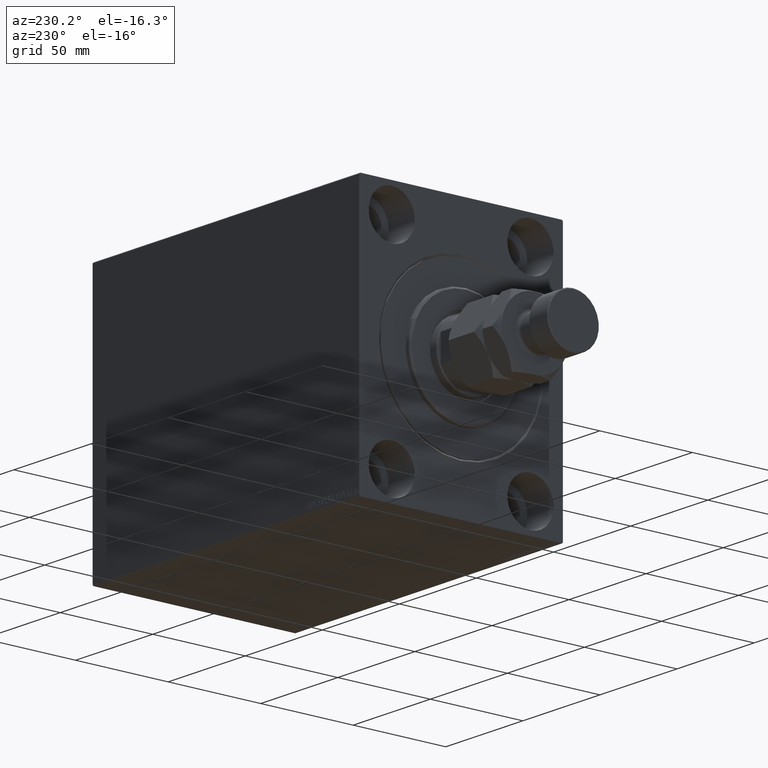
[diagram: clean part render]
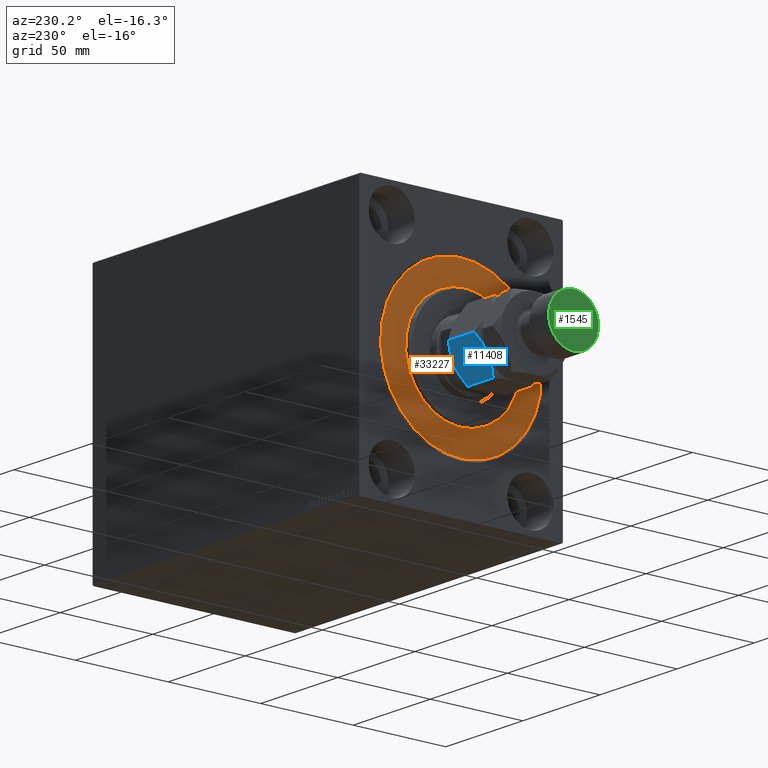
[diagram: same view with three faces highlighted in distinct colors, each labeled with its STEP entity id]
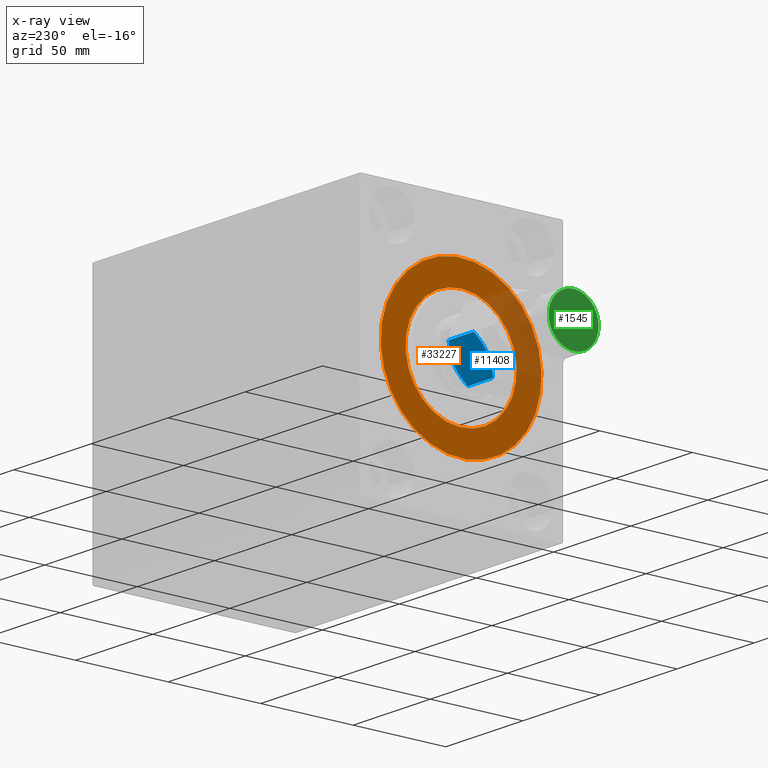
[diagram: x-ray of the same camera — body ghosted, the three highlighted faces saturated]
A machine part, auxiliary view with three faces highlighted in distinct colors.
The next image is the same camera in x-ray (body ghosted, the three faces saturated) — at least one of them is partly hidden behind the body in this view.
Their STEP definitions:

[orange] entity #33227 — the highlighted planar face has unit normal (1, 0, -0).
#2454 = DIRECTION ( 'NONE',  ( 1.000000000000000000, -0.000000000000000000, 0.000000000000000000 ) ) ;
#4087 = AXIS2_PLACEMENT_3D ( 'NONE', #15046, #15270, #40595 ) ;
#5914 = DIRECTION ( 'NONE',  ( 0.000000000000000000, 0.000000000000000000, -1.000000000000000000 ) ) ;
#5976 = EDGE_LOOP ( 'NONE', ( #21158, #35433 ) ) ;
#6609 = VERTEX_POINT ( 'NONE', #33498 ) ;
#6861 = CARTESIAN_POINT ( 'NONE',  ( 0.000000000000000000, 5.327213576290986044E-15, 43.50000000000000000 ) ) ;
#7173 = CARTESIAN_POINT ( 'NONE',  ( 0.000000000000000000, 0.000000000000000000, -43.50000000000000000 ) ) ;
#8223 = CIRCLE ( 'NONE', #30983, 30.00000000000000000 ) ;
#13819 = DIRECTION ( 'NONE',  ( 0.000000000000000000, 0.000000000000000000, 1.000000000000000000 ) ) ;
#13959 = VERTEX_POINT ( 'NONE', #6861 ) ;
#15046 = CARTESIAN_POINT ( 'NONE',  ( 0.000000000000000000, 0.000000000000000000, 0.000000000000000000 ) ) ;
#15270 = DIRECTION ( 'NONE',  ( -1.000000000000000000, 0.000000000000000000, 0.000000000000000000 ) ) ;
#15919 = CIRCLE ( 'NONE', #30604, 30.00000000000000000 ) ;
#15949 = PLANE ( 'NONE',  #4087 ) ;
#16508 = DIRECTION ( 'NONE',  ( 1.000000000000000000, -0.000000000000000000, 0.000000000000000000 ) ) ;
#16878 = EDGE_CURVE ( 'NONE', #6609, #43461, #8223, .T. ) ;
#16954 = CARTESIAN_POINT ( 'NONE',  ( 0.000000000000000000, 0.000000000000000000, 0.000000000000000000 ) ) ;
#17330 = AXIS2_PLACEMENT_3D ( 'NONE', #38143, #17876, #20646 ) ;
#17876 = DIRECTION ( 'NONE',  ( -1.000000000000000000, 0.000000000000000000, 0.000000000000000000 ) ) ;
#18874 = AXIS2_PLACEMENT_3D ( 'NONE', #31303, #31079, #13819 ) ;
#19533 = CIRCLE ( 'NONE', #17330, 43.50000000000000000 ) ;
#20646 = DIRECTION ( 'NONE',  ( 0.000000000000000000, 0.000000000000000000, 1.000000000000000000 ) ) ;
#21158 = ORIENTED_EDGE ( 'NONE', *, *, #40091, .F. ) ;
#29763 = FACE_OUTER_BOUND ( 'NONE', #43161, .T. ) ;
#30604 = AXIS2_PLACEMENT_3D ( 'NONE', #16954, #16508, #5914 ) ;
#30983 = AXIS2_PLACEMENT_3D ( 'NONE', #41832, #2454, #45504 ) ;
#31079 = DIRECTION ( 'NONE',  ( -1.000000000000000000, 0.000000000000000000, 0.000000000000000000 ) ) ;
#31303 = CARTESIAN_POINT ( 'NONE',  ( 0.000000000000000000, 0.000000000000000000, 0.000000000000000000 ) ) ;
#32222 = VERTEX_POINT ( 'NONE', #7173 ) ;
#33227 = ADVANCED_FACE ( 'NONE', ( #36889, #29763 ), #15949, .F. ) ;
#33498 = CARTESIAN_POINT ( 'NONE',  ( 0.000000000000000000, 3.673940397442059178E-15, -30.00000000000000000 ) ) ;
#34113 = EDGE_CURVE ( 'NONE', #13959, #32222, #19533, .T. ) ;
#35433 = ORIENTED_EDGE ( 'NONE', *, *, #16878, .F. ) ;
#36889 = FACE_BOUND ( 'NONE', #5976, .T. ) ;
#37138 = CARTESIAN_POINT ( 'NONE',  ( 0.000000000000000000, 0.000000000000000000, 30.00000000000000000 ) ) ;
#38143 = CARTESIAN_POINT ( 'NONE',  ( 0.000000000000000000, 0.000000000000000000, 0.000000000000000000 ) ) ;
#38538 = ORIENTED_EDGE ( 'NONE', *, *, #34113, .F. ) ;
#38724 = CIRCLE ( 'NONE', #18874, 43.50000000000000000 ) ;
#40091 = EDGE_CURVE ( 'NONE', #43461, #6609, #15919, .T. ) ;
#40595 = DIRECTION ( 'NONE',  ( 0.000000000000000000, 0.000000000000000000, 1.000000000000000000 ) ) ;
#41832 = CARTESIAN_POINT ( 'NONE',  ( 0.000000000000000000, 0.000000000000000000, 0.000000000000000000 ) ) ;
#42569 = EDGE_CURVE ( 'NONE', #32222, #13959, #38724, .T. ) ;
#43161 = EDGE_LOOP ( 'NONE', ( #43994, #38538 ) ) ;
#43461 = VERTEX_POINT ( 'NONE', #37138 ) ;
#43994 = ORIENTED_EDGE ( 'NONE', *, *, #42569, .F. ) ;
#45504 = DIRECTION ( 'NONE',  ( 0.000000000000000000, 0.000000000000000000, -1.000000000000000000 ) ) ;

[blue] entity #11408 — the highlighted planar face has unit normal (0, -0.866, 0.5).
#1687 = VERTEX_POINT ( 'NONE', #24341 ) ;
#2802 = CARTESIAN_POINT ( 'NONE',  ( -15.13928418966203004, 12.04393988858690889, 20.72742529849574566 ) ) ;
#3193 = DIRECTION ( 'NONE',  ( -0.000000000000000000, -0.000000000000000000, -1.000000000000000000 ) ) ;
#3225 = CARTESIAN_POINT ( 'NONE',  ( -15.14539811114618217, 12.04041001437223279, 1.277383077889873819 ) ) ;
#3725 = CARTESIAN_POINT ( 'NONE',  ( -5.858009779716798704, 17.40248616759157940, 21.65943689774472247 ) ) ;
#3983 = VERTEX_POINT ( 'NONE', #25303 ) ;
#5406 = B_SPLINE_CURVE_WITH_KNOTS ( 'NONE', 3,
 ( #8379, #22643, #40157, #39923, #11390, #14616 ),
 .UNSPECIFIED., .F., .F.,
 ( 4, 2, 4 ),
 ( 0.01077282027732747414, 0.01612137750481873466, 0.02146993473230999344 ),
 .UNSPECIFIED. ) ;
#6681 = FACE_OUTER_BOUND ( 'NONE', #22098, .T. ) ;
#6710 = ORIENTED_EDGE ( 'NONE', *, *, #28557, .T. ) ;
#6894 = CARTESIAN_POINT ( 'NONE',  ( -16.58866960374794530, 11.20713682960488811, 1.969777706634902259 ) ) ;
#7352 = CARTESIAN_POINT ( 'NONE',  ( -18.00000000000000000, 10.39230484541327115, 2.784609690826521433 ) ) ;
#8094 = CARTESIAN_POINT ( 'NONE',  ( -8.605874323383762459, 15.81600583360882162, 21.99999999999999645 ) ) ;
#8379 = CARTESIAN_POINT ( 'NONE',  ( -8.999999999999991118, 15.58845726811989785, 0.000000000000000000 ) ) ;
#9109 = ORIENTED_EDGE ( 'NONE', *, *, #26272, .F. ) ;
#9931 = CARTESIAN_POINT ( 'NONE',  ( 0.000000000000000000, 20.78460969082652454, 22.00000000000000000 ) ) ;
#10251 = CARTESIAN_POINT ( 'NONE',  ( -2.339913671058857151E-16, 20.78460969082652454, 19.21539030917348256 ) ) ;
#10587 = CARTESIAN_POINT ( 'NONE',  ( -10.58425150785354241, 14.67378923359659559, 0.08694689011815655288 ) ) ;
#11104 = CARTESIAN_POINT ( 'NONE',  ( -8.999999999999991118, 15.58845726811989785, 22.00000000000000000 ) ) ;
#11390 = CARTESIAN_POINT ( 'NONE',  ( -1.409696000463985355, 19.97072132548310108, 1.970721325483047570 ) ) ;
#11408 = ADVANCED_FACE ( 'NONE', ( #6681 ), #44932, .F. ) ;
#11561 = B_SPLINE_CURVE_WITH_KNOTS ( 'NONE', 3,
 ( #17540, #38720, #21226, #35262, #3725, #39865, #29716, #18683, #8094, #11104 ),
 .UNSPECIFIED., .F., .F.,
 ( 4, 2, 2, 2, 4 ),
 ( 2.544307986817554504E-07, 0.005386537354063073400, 0.008079678815695268135, 0.009426249546511363334, 0.01077282027732746027 ),
 .UNSPECIFIED. ) ;
#13387 = CARTESIAN_POINT ( 'NONE',  ( -18.00000000000000000, 10.39230484541327293, 19.21539030917347546 ) ) ;
#14064 = DIRECTION ( 'NONE',  ( -0.000000000000000000, -0.000000000000000000, -1.000000000000000000 ) ) ;
#14314 = ORIENTED_EDGE ( 'NONE', *, *, #36689, .F. ) ;
#14616 = CARTESIAN_POINT ( 'NONE',  ( -1.065242688631141971E-15, 20.78460969082652454, 2.784609690826513440 ) ) ;
#16832 = CARTESIAN_POINT ( 'NONE',  ( -12.10430252359947545, 13.79618737047371013, 21.72360409287842131 ) ) ;
#17038 = CARTESIAN_POINT ( 'NONE',  ( -12.14199022028319419, 13.77442836864822340, 0.3405631022552705334 ) ) ;
#17540 = CARTESIAN_POINT ( 'NONE',  ( -2.339913671058857151E-16, 20.78460969082652454, 19.21539030917348256 ) ) ;
#18683 = CARTESIAN_POINT ( 'NONE',  ( -8.209538469370123437, 16.04483044561310479, 21.98266714352590157 ) ) ;
#20287 = CARTESIAN_POINT ( 'NONE',  ( -8.999999999999991118, 15.58845726811989785, 22.00000000000000000 ) ) ;
#20515 = ORIENTED_EDGE ( 'NONE', *, *, #37572, .F. ) ;
#20944 = CARTESIAN_POINT ( 'NONE',  ( -10.97671975407794953, 14.44719758599054771, 0.1387225990985785085 ) ) ;
#21032 = VERTEX_POINT ( 'NONE', #28714 ) ;
#21226 = CARTESIAN_POINT ( 'NONE',  ( -2.854601888853811165, 19.13650452186756468, 20.72261692211012374 ) ) ;
#21715 = VERTEX_POINT ( 'NONE', #41040 ) ;
#22098 = EDGE_LOOP ( 'NONE', ( #20515, #40908, #9109, #14314, #6710, #23612 ) ) ;
#22643 = CARTESIAN_POINT ( 'NONE',  ( -7.434539168300451806, 16.49227650070744389, 2.835866307407396746E-15 ) ) ;
#23612 = ORIENTED_EDGE ( 'NONE', *, *, #43346, .F. ) ;
#23724 = DIRECTION ( 'NONE',  ( 0.4999999999999996114, -0.8660254037844388186, 0.000000000000000000 ) ) ;
#24225 = AXIS2_PLACEMENT_3D ( 'NONE', #9931, #23724, #31318 ) ;
#24341 = CARTESIAN_POINT ( 'NONE',  ( -8.999999999999991118, 15.58845726811989785, 22.00000000000000000 ) ) ;
#25303 = CARTESIAN_POINT ( 'NONE',  ( -18.00000000000000000, 10.39230484541327115, 2.784609690826521433 ) ) ;
#25913 = B_SPLINE_CURVE_WITH_KNOTS ( 'NONE', 3,
 ( #20287, #44935, #16832, #2802, #30880, #13387 ),
 .UNSPECIFIED., .F., .F.,
 ( 4, 2, 4 ),
 ( 0.01077282027732746027, 0.01612137750481872772, 0.02146993473230999691 ),
 .UNSPECIFIED. ) ;
#26089 = VECTOR ( 'NONE', #3193, 1000.000000000000000 ) ;
#26272 = EDGE_CURVE ( 'NONE', #1687, #21715, #25913, .T. ) ;
#26994 = EDGE_CURVE ( 'NONE', #21715, #3983, #31105, .T. ) ;
#28307 = CARTESIAN_POINT ( 'NONE',  ( -9.790461530629869458, 15.13208409062670334, 0.01733285647409164854 ) ) ;
#28540 = CARTESIAN_POINT ( 'NONE',  ( -8.999999999999991118, 15.58845726811989785, 0.000000000000000000 ) ) ;
#28557 = EDGE_CURVE ( 'NONE', #42436, #42765, #45334, .T. ) ;
#28714 = CARTESIAN_POINT ( 'NONE',  ( -8.999999999999991118, 15.58845726811989785, 0.000000000000000000 ) ) ;
#29716 = CARTESIAN_POINT ( 'NONE',  ( -7.415748492146450488, 16.50312530264321254, 21.91305310988183663 ) ) ;
#30880 = CARTESIAN_POINT ( 'NONE',  ( -16.59030399953601176, 11.20619321075669284, 20.02927867451694155 ) ) ;
#30888 = CARTESIAN_POINT ( 'NONE',  ( -18.00000000000000000, 10.39230484541327293, 22.00000000000000000 ) ) ;
#31081 = CARTESIAN_POINT ( 'NONE',  ( -12.90267270303526814, 13.33524813246347840, 0.5370855558290131837 ) ) ;
#31105 = LINE ( 'NONE', #30888, #43679 ) ;
#31318 = DIRECTION ( 'NONE',  ( 0.8660254037844388186, 0.4999999999999996114, 0.000000000000000000 ) ) ;
#34508 = CARTESIAN_POINT ( 'NONE',  ( 0.000000000000000000, 20.78460969082652454, 22.00000000000000000 ) ) ;
#35262 = CARTESIAN_POINT ( 'NONE',  ( -5.097327296964721199, 17.84166640377631552, 21.46291444417098759 ) ) ;
#35434 = CARTESIAN_POINT ( 'NONE',  ( -9.394125676616230436, 15.36090870263097941, 2.570744994916802318E-15 ) ) ;
#36689 = EDGE_CURVE ( 'NONE', #42436, #1687, #11561, .T. ) ;
#37572 = EDGE_CURVE ( 'NONE', #3983, #21032, #39233, .T. ) ;
#38720 = CARTESIAN_POINT ( 'NONE',  ( -1.411330396252047148, 19.96977770663490404, 20.03022229336509952 ) ) ;
#39233 = B_SPLINE_CURVE_WITH_KNOTS ( 'NONE', 3,
 ( #7352, #6894, #3225, #31081, #17038, #20944, #10587, #28307, #35434, #28540 ),
 .UNSPECIFIED., .F., .F.,
 ( 4, 2, 2, 2, 4 ),
 ( 2.544307986804616605E-07, 0.005386537354063081207, 0.008079678815695278543, 0.009426249546511375477, 0.01077282027732747414 ),
 .UNSPECIFIED. ) ;
#39865 = CARTESIAN_POINT ( 'NONE',  ( -7.023280245922044251, 16.72971695024925509, 21.86127740090141458 ) ) ;
#39923 = CARTESIAN_POINT ( 'NONE',  ( -2.860715810337960185, 19.13297464765287614, 1.272574701504242345 ) ) ;
#40037 = CARTESIAN_POINT ( 'NONE',  ( -1.065242688631141971E-15, 20.78460969082652454, 2.784609690826513440 ) ) ;
#40157 = CARTESIAN_POINT ( 'NONE',  ( -5.895697476400516557, 17.38072716576608912, 0.2763959071215859042 ) ) ;
#40908 = ORIENTED_EDGE ( 'NONE', *, *, #26994, .F. ) ;
#41040 = CARTESIAN_POINT ( 'NONE',  ( -18.00000000000000000, 10.39230484541327293, 19.21539030917347546 ) ) ;
#42436 = VERTEX_POINT ( 'NONE', #10251 ) ;
#42765 = VERTEX_POINT ( 'NONE', #40037 ) ;
#43346 = EDGE_CURVE ( 'NONE', #21032, #42765, #5406, .T. ) ;
#43679 = VECTOR ( 'NONE', #14064, 1000.000000000000000 ) ;
#44932 = PLANE ( 'NONE',  #24225 ) ;
#44935 = CARTESIAN_POINT ( 'NONE',  ( -10.56546083169953221, 14.68463803553235714, 21.99999999999998934 ) ) ;
#45334 = LINE ( 'NONE', #34508, #26089 ) ;

[green] entity #1545 — the highlighted planar face has unit normal (-1, 0, 0).
#749 = CARTESIAN_POINT ( 'NONE',  ( -13.50000000000001954, 0.000000000000000000, 59.00000000000000000 ) ) ;
#1545 = ADVANCED_FACE ( 'NONE', ( #43511 ), #11961, .T. ) ;
#2273 = DIRECTION ( 'NONE',  ( 1.000000000000000000, 0.000000000000000000, -0.000000000000000000 ) ) ;
#3218 = AXIS2_PLACEMENT_3D ( 'NONE', #44486, #15086, #15308 ) ;
#5611 = EDGE_CURVE ( 'NONE', #7804, #28287, #35814, .T. ) ;
#7804 = VERTEX_POINT ( 'NONE', #749 ) ;
#11961 = PLANE ( 'NONE',  #21711 ) ;
#12455 = EDGE_LOOP ( 'NONE', ( #20943, #33034 ) ) ;
#12546 = DIRECTION ( 'NONE',  ( 0.000000000000000000, 0.000000000000000000, 1.000000000000000000 ) ) ;
#15086 = DIRECTION ( 'NONE',  ( 0.000000000000000000, 0.000000000000000000, 1.000000000000000000 ) ) ;
#15308 = DIRECTION ( 'NONE',  ( 1.000000000000000000, 0.000000000000000000, 0.000000000000000000 ) ) ;
#18778 = DIRECTION ( 'NONE',  ( 1.000000000000000000, 0.000000000000000000, 0.000000000000000000 ) ) ;
#20370 = AXIS2_PLACEMENT_3D ( 'NONE', #26357, #12546, #18778 ) ;
#20943 = ORIENTED_EDGE ( 'NONE', *, *, #5611, .T. ) ;
#21711 = AXIS2_PLACEMENT_3D ( 'NONE', #25994, #40974, #2273 ) ;
#25109 = CARTESIAN_POINT ( 'NONE',  ( 13.50000000000001954, 1.683889348827612034E-15, 59.00000000000000000 ) ) ;
#25994 = CARTESIAN_POINT ( 'NONE',  ( 0.000000000000000000, 0.000000000000000000, 59.00000000000000000 ) ) ;
#26357 = CARTESIAN_POINT ( 'NONE',  ( 0.000000000000000000, 0.000000000000000000, 59.00000000000000000 ) ) ;
#26911 = EDGE_CURVE ( 'NONE', #28287, #7804, #37780, .T. ) ;
#28287 = VERTEX_POINT ( 'NONE', #25109 ) ;
#33034 = ORIENTED_EDGE ( 'NONE', *, *, #26911, .T. ) ;
#35814 = CIRCLE ( 'NONE', #20370, 13.50000000000001954 ) ;
#37780 = CIRCLE ( 'NONE', #3218, 13.50000000000001954 ) ;
#40974 = DIRECTION ( 'NONE',  ( 0.000000000000000000, 0.000000000000000000, 1.000000000000000000 ) ) ;
#43511 = FACE_OUTER_BOUND ( 'NONE', #12455, .T. ) ;
#44486 = CARTESIAN_POINT ( 'NONE',  ( 0.000000000000000000, 0.000000000000000000, 59.00000000000000000 ) ) ;